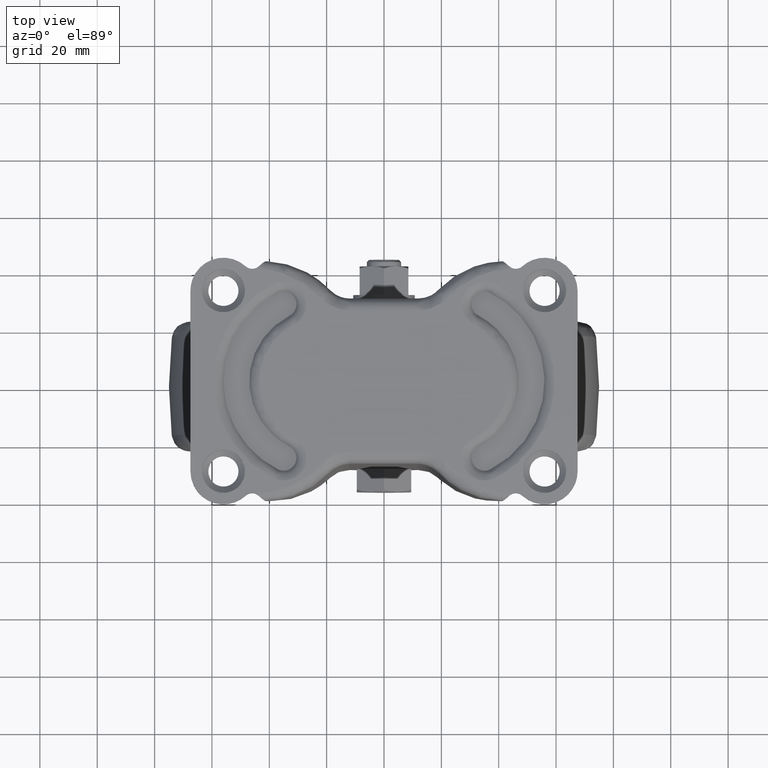
[diagram: clean part render]
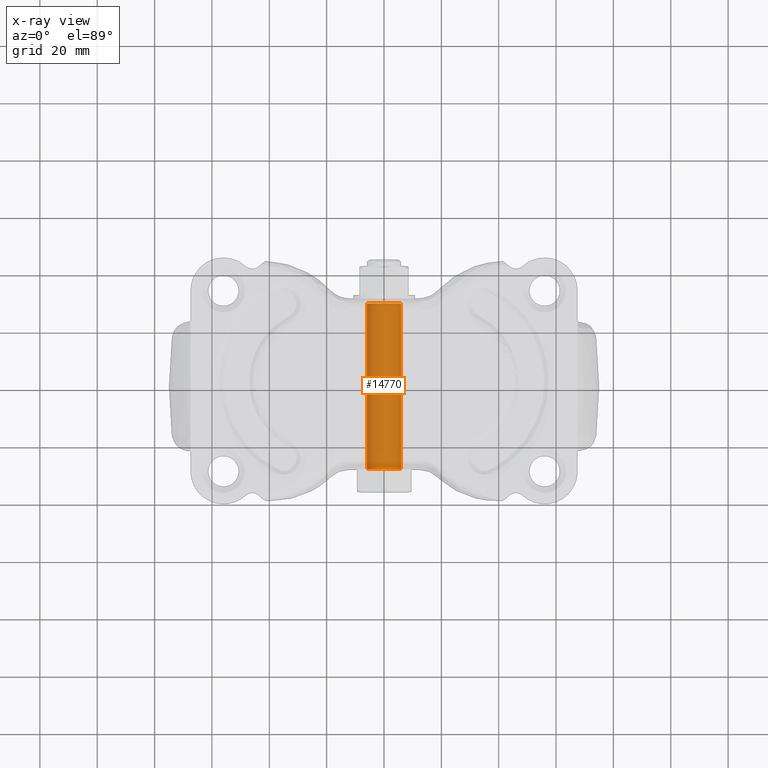
[diagram: x-ray — body ghosted, one internal face saturated and labeled with its STEP entity id]
A machine part, top view, then the same camera in x-ray: the body is ghosted and one INTERNAL B-rep face — a face not visible from any outside direction — is saturated and labeled: STEP entity #14770.
In plain terms, the highlighted face is a freeform B-spline surface patch.
Its self-contained STEP definition (entity closure, byte-faithful):
#14515=CARTESIAN_POINT('',(0.0,-28.850000000000001,-106.0));
#14516=VERTEX_POINT('',#14515);
#14517=CARTESIAN_POINT('',(-5.988809122515391,-28.849999999999991,-111.633714190765100));
#14518=VERTEX_POINT('',#14517);
#14519=CARTESIAN_POINT('',(0.0,-28.850000000000001,-106.0));
#14520=CARTESIAN_POINT('',(-5.644241526664515,-28.850000000000005,-106.000000000000070));
#14521=CARTESIAN_POINT('',(-5.988809122515391,-28.849999999999987,-111.633714190765120));
#14529=(BOUNDED_CURVE()B_SPLINE_CURVE(2,(#14519,#14520,#14521),.UNSPECIFIED.,.F.,.U.)B_SPLINE_CURVE_WITH_KNOTS((3,3),(0.500000000000000,0.739333118630272),.UNSPECIFIED.)CURVE()GEOMETRIC_REPRESENTATION_ITEM()RATIONAL_B_SPLINE_CURVE((1.0,0.719603810062872,0.976072376843335))REPRESENTATION_ITEM(''));
#14530=EDGE_CURVE('',#14516,#14518,#14529,.T.);
#14549=CARTESIAN_POINT('',(5.988809122515391,-28.849999999999991,-112.366285809234900));
#14550=VERTEX_POINT('',#14549);
#14564=CARTESIAN_POINT('',(5.988809122515391,-28.849999999999998,-112.366285809234900));
#14565=CARTESIAN_POINT('',(5.999999999997576,-28.849999999999998,-112.183313858194650));
#14566=CARTESIAN_POINT('',(5.999999999997614,-28.849999999999991,-111.999999999999900));
#14567=CARTESIAN_POINT('',(5.999999999998844,-28.850000000000005,-105.999999999999940));
#14568=CARTESIAN_POINT('',(0.0,-28.850000000000001,-106.0));
#14576=(BOUNDED_CURVE()B_SPLINE_CURVE(2,(#14564,#14565,#14566,#14567,#14568),.UNSPECIFIED.,.F.,.U.)B_SPLINE_CURVE_WITH_KNOTS((3,2,3),(0.239333118630271,0.250000000000000,0.500000000000000),.UNSPECIFIED.)CURVE()GEOMETRIC_REPRESENTATION_ITEM()RATIONAL_B_SPLINE_CURVE((0.976072376843333,0.987502971123675,1.0,0.707106781186548,1.0))REPRESENTATION_ITEM(''));
#14577=EDGE_CURVE('',#14550,#14516,#14576,.T.);
#14704=CARTESIAN_POINT('',(5.988808790531200,30.292500000000011,-112.366291237209100));
#14705=CARTESIAN_POINT('',(6.355100027740342,30.292500000000011,-106.377482446677940));
#14706=CARTESIAN_POINT('',(0.366291237209142,30.292500000000011,-106.011191209468810));
#14707=CARTESIAN_POINT('',(-5.622517553322059,30.292500000000011,-105.644899972259670));
#14708=CARTESIAN_POINT('',(-5.988808790531200,30.292500000000011,-111.633708762790900));
#14709=CARTESIAN_POINT('',(5.988808790531200,-30.328562500000000,-112.366291237209100));
#14710=CARTESIAN_POINT('',(6.355100027740342,-30.328562499999997,-106.377482446677940));
#14711=CARTESIAN_POINT('',(0.366291237209142,-30.328562500000000,-106.011191209468810));
#14712=CARTESIAN_POINT('',(-5.622517553322059,-30.328562499999997,-105.644899972259670));
#14713=CARTESIAN_POINT('',(-5.988808790531200,-30.328562500000000,-111.633708762790900));
#14721=(BOUNDED_SURFACE()B_SPLINE_SURFACE(2,1,((#14704,#14709),(#14705,#14710),(#14706,#14711),(#14707,#14712),(#14708,#14713)),.UNSPECIFIED.,.F.,.F.,.U.)B_SPLINE_SURFACE_WITH_KNOTS((3,2,3),(2,2),(0.0,9.941125496954287,19.882250993908571),(0.0,60.621062500000022),.UNSPECIFIED.)GEOMETRIC_REPRESENTATION_ITEM()RATIONAL_B_SPLINE_SURFACE(((1.0,1.0),(0.707106781186548,0.707106781186548),(1.0,1.0),(0.707106781186548,0.707106781186548),(1.0,1.0)))REPRESENTATION_ITEM('')SURFACE());
#14722=ORIENTED_EDGE('',*,*,#14577,.F.);
#14723=CARTESIAN_POINT('',(5.988809118434290,28.850000000000001,-112.366285875962300));
#14724=VERTEX_POINT('',#14723);
#14725=CARTESIAN_POINT('',(5.988809118434290,28.850000000000001,-112.366285875962300));
#14726=CARTESIAN_POINT('',(5.988809122515391,-28.849999999999991,-112.366285809234900));
#14727=QUASI_UNIFORM_CURVE('',1,(#14725,#14726),.UNSPECIFIED.,.F.,.U.);
#14728=EDGE_CURVE('',#14724,#14550,#14727,.T.);
#14729=ORIENTED_EDGE('',*,*,#14728,.F.);
#14730=CARTESIAN_POINT('',(0.0,28.850000000000001,-106.0));
#14731=VERTEX_POINT('',#14730);
#14732=CARTESIAN_POINT('',(5.988809118434290,28.850000000000005,-112.366285875962320));
#14733=CARTESIAN_POINT('',(5.999999999997636,28.850000000000001,-112.183313891651980));
#14734=CARTESIAN_POINT('',(5.999999999997672,28.850000000000001,-111.999999999999900));
#14735=CARTESIAN_POINT('',(5.999999999998872,28.850000000000005,-105.999999999999940));
#14736=CARTESIAN_POINT('',(0.0,28.850000000000001,-106.0));
#14744=(BOUNDED_CURVE()B_SPLINE_CURVE(2,(#14732,#14733,#14734,#14735,#14736),.UNSPECIFIED.,.F.,.U.)B_SPLINE_CURVE_WITH_KNOTS((3,2,3),(0.239333116707752,0.250000000000000,0.500000000000000),.UNSPECIFIED.)CURVE()GEOMETRIC_REPRESENTATION_ITEM()RATIONAL_B_SPLINE_CURVE((0.976072372723003,0.987502968871304,1.0,0.707106781186548,1.0))REPRESENTATION_ITEM(''));
#14745=EDGE_CURVE('',#14724,#14731,#14744,.T.);
#14746=ORIENTED_EDGE('',*,*,#14745,.T.);
#14747=CARTESIAN_POINT('',(-5.988809118434290,28.850000000000001,-111.633714124037700));
#14748=VERTEX_POINT('',#14747);
#14749=CARTESIAN_POINT('',(0.0,28.850000000000001,-106.0));
#14750=CARTESIAN_POINT('',(-5.644241463658815,28.850000000000005,-106.000000000000090));
#14751=CARTESIAN_POINT('',(-5.988809118434290,28.850000000000005,-111.633714124037780));
#14759=(BOUNDED_CURVE()B_SPLINE_CURVE(2,(#14749,#14750,#14751),.UNSPECIFIED.,.F.,.U.)B_SPLINE_CURVE_WITH_KNOTS((3,3),(0.500000000000000,0.739333116707752),.UNSPECIFIED.)CURVE()GEOMETRIC_REPRESENTATION_ITEM()RATIONAL_B_SPLINE_CURVE((1.0,0.719603812315243,0.976072372723004))REPRESENTATION_ITEM(''));
#14760=EDGE_CURVE('',#14731,#14748,#14759,.T.);
#14761=ORIENTED_EDGE('',*,*,#14760,.T.);
#14762=CARTESIAN_POINT('',(-5.988809118434290,28.850000000000001,-111.633714124037700));
#14763=CARTESIAN_POINT('',(-5.988809122515391,-28.849999999999991,-111.633714190765100));
#14764=QUASI_UNIFORM_CURVE('',1,(#14762,#14763),.UNSPECIFIED.,.F.,.U.);
#14765=EDGE_CURVE('',#14748,#14518,#14764,.T.);
#14766=ORIENTED_EDGE('',*,*,#14765,.T.);
#14767=ORIENTED_EDGE('',*,*,#14530,.F.);
#14768=EDGE_LOOP('',(#14722,#14729,#14746,#14761,#14766,#14767));
#14769=FACE_OUTER_BOUND('',#14768,.T.);
#14770=ADVANCED_FACE('',(#14769),#14721,.T.);